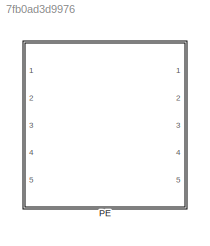
MODEL slx_7fb0ad3d9976
KIND library
CONFIG AbsTol = auto
CONFIG EnableMultiTasking = off
CONFIG FixedStep = auto
CONFIG MaxStep = auto
CONFIG MinStep = auto
CONFIG RelTol = 1e-3
CONFIG SampleTimeConstraint = Unconstrained
CONFIG SolverName = VariableStepAuto
CONFIG StartTime = 0.0
CONFIG StopTime = 10.0
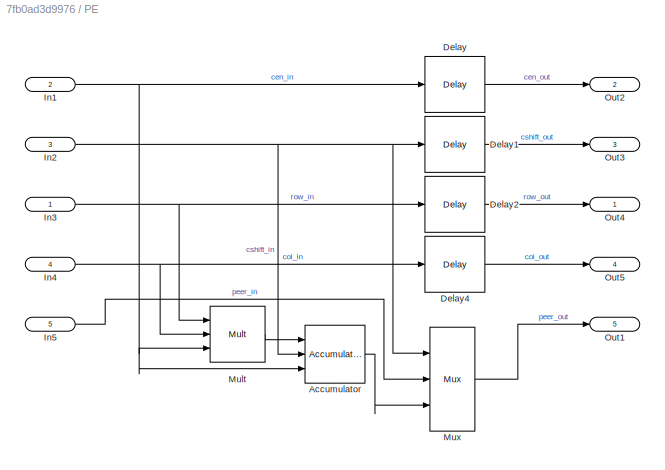
BLOCK [SubSystem] PE
  PortSchema = {"entries":[{"content":{"sides":[{"content":{"connectorIds":["In1","Out5"]},"type":"ConnectorPlacement.EquallySpacedRectSide","uuid":"f7e55443-70fb-4ed5-ab4f-147f7311106a"},{"content":{"connectorIds":["Out1","In5"],"side":"RIGHT"},"type":"ConnectorPlacement.EquallySpacedRectSide","uuid":"6de0769a-4a22-4abb-b630-26d0c175204f"},{"content":{"connectorIds":["In2","In3","In4"],"side":"TOP"},"type":"Con...<+434ch>
  Ports = [5, 5]
  RequestExecContextInheritance = off
BLOCK [Reference] PE/Accumulator  REF=hdlBasic/Accumulator
  Ports = [3, 1]
  SourceBlock = hdlBasic/Accumulator
  SourceType = Accumulator Block
BLOCK [Reference] PE/Delay  REF=hdlBasic/Delay
  Ports = [1, 1]
  SourceBlock = hdlBasic/Delay
  SourceType = Delay Block
BLOCK [Reference] PE/Delay1  REF=hdlBasic/Delay
  Ports = [1, 1]
  SourceBlock = hdlBasic/Delay
  SourceType = Delay Block
BLOCK [Reference] PE/Delay2  REF=hdlBasic/Delay
  Ports = [1, 1]
  SourceBlock = hdlBasic/Delay
  SourceType = Delay Block
BLOCK [Reference] PE/Delay4  REF=hdlBasic/Delay
  Ports = [1, 1]
  SourceBlock = hdlBasic/Delay
  SourceType = Delay Block
BLOCK [Inport] PE/In1
  IconDisplay = Signal name
  Port = 2
BLOCK [Inport] PE/In2
  IconDisplay = Signal name
  Port = 3
BLOCK [Inport] PE/In3
  IconDisplay = Signal name
BLOCK [Inport] PE/In4
  IconDisplay = Signal name
  Port = 4
BLOCK [Inport] PE/In5
  IconDisplay = Signal name
  Port = 5
BLOCK [Reference] PE/Mult  REF=hdlBasic/Mult
  Ports = [3, 1]
  SourceBlock = hdlBasic/Mult
  SourceType = Multiplier Block
BLOCK [Reference] PE/Mux  REF=hdlBasic/Mux
  Ports = [3, 1]
  SourceBlock = hdlBasic/Mux
  SourceType = Bus Multiplexer Block
BLOCK [Outport] PE/Out1
  IconDisplay = Signal name
  Port = 5
BLOCK [Outport] PE/Out2
  IconDisplay = Signal name
  Port = 2
BLOCK [Outport] PE/Out3
  IconDisplay = Signal name
  Port = 3
BLOCK [Outport] PE/Out4
  IconDisplay = Signal name
BLOCK [Outport] PE/Out5
  IconDisplay = Signal name
  Port = 4
LINE PE/Accumulator:1 -> PE/Mux:3
LINE PE/Delay1:1 -> PE/Out3:1
LINE PE/Delay2:1 -> PE/Out4:1
LINE PE/Delay4:1 -> PE/Out5:1
LINE PE/Delay:1 -> PE/Out2:1
NET PE/In1:1 -> PE/Accumulator:3, PE/Delay:1, PE/Mult:3
NET PE/In2:1 -> PE/Accumulator:2, PE/Delay1:1, PE/Mux:1
NET PE/In3:1 -> PE/Delay2:1, PE/Mult:1
NET PE/In4:1 -> PE/Delay4:1, PE/Mult:2
LINE PE/In5:1 -> PE/Mux:2
LINE PE/Mult:1 -> PE/Accumulator:1
LINE PE/Mux:1 -> PE/Out1:1
note: NET lines group one-source signal fan-out (src -> all destinations, sorted); 1:1 wires keep LINE
